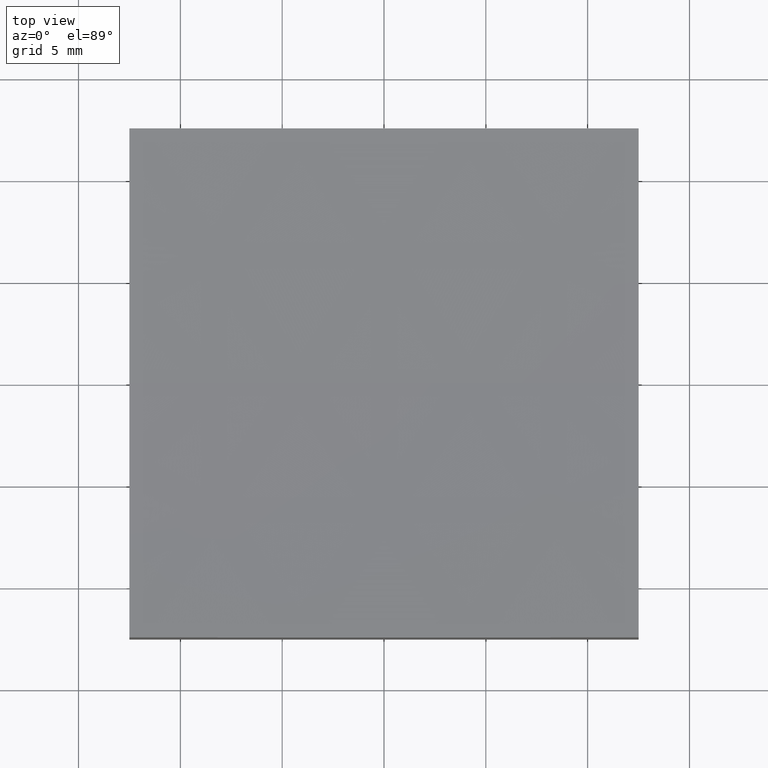
[diagram: clean part render]
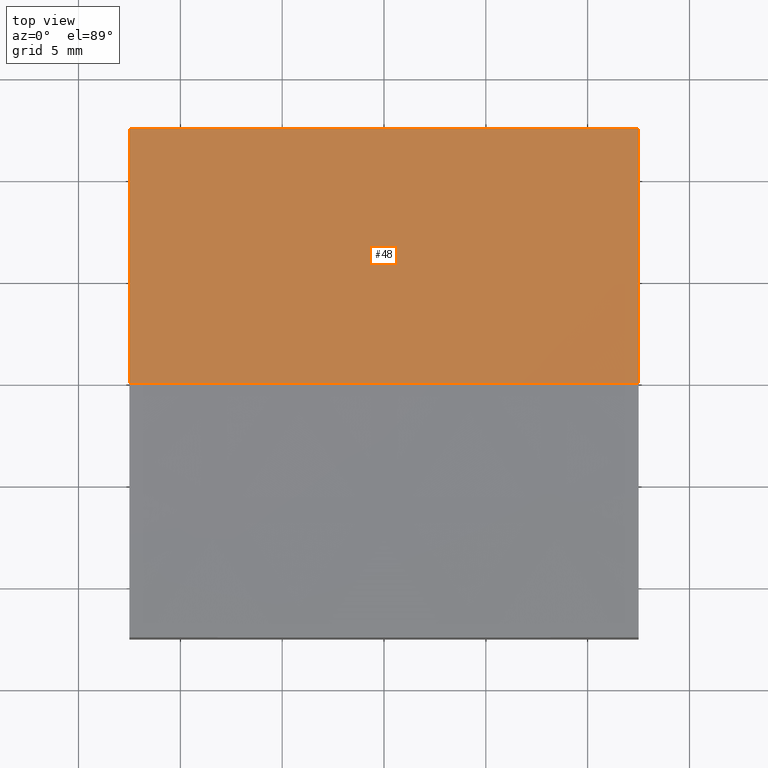
[diagram: same view with one face highlighted and labeled with its STEP entity id]
A machine part, top view. The second image highlights one B-rep face of the part: STEP entity #48.
In plain terms, the highlighted spherical surface has radius 500 mm.
Its self-contained STEP definition (entity closure, byte-faithful):
#1 = VERTEX_POINT ( 'NONE', #166 ) ;
#11 = DIRECTION ( 'NONE',  ( -1.388212665044284229E-16, 1.000000000000000000, 0.0000000000000000000 ) ) ;
#13 = AXIS2_PLACEMENT_3D ( 'NONE', #205, #169, #11 ) ;
#14 = EDGE_CURVE ( 'NONE', #85, #1, #110, .T. ) ;
#18 = CARTESIAN_POINT ( 'NONE',  ( -12.50000000000000000, 12.50000000000000000, 6.312597717332835145 ) ) ;
#25 = DIRECTION ( 'NONE',  ( 0.0000000000000000000, 1.000000000000000000, 0.0000000000000000000 ) ) ;
#35 = VERTEX_POINT ( 'NONE', #157 ) ;
#45 = CARTESIAN_POINT ( 'NONE',  ( 6.196712803685608594E-14, 0.0000000000000000000, 506.0000000000000000 ) ) ;
#47 = DIRECTION ( 'NONE',  ( 0.0000000000000000000, 0.0000000000000000000, -1.000000000000000000 ) ) ;
#48 = ADVANCED_FACE ( 'NONE', ( #78 ), #231, .F. ) ;
#51 = CIRCLE ( 'NONE', #122, 499.8437255783051683 ) ;
#63 = EDGE_CURVE ( 'NONE', #1, #99, #51, .T. ) ;
#66 = CARTESIAN_POINT ( 'NONE',  ( -12.49999999999999822, -1.734723475976815575E-15, 506.0000000000000000 ) ) ;
#68 = AXIS2_PLACEMENT_3D ( 'NONE', #152, #245, #90 ) ;
#78 = FACE_OUTER_BOUND ( 'NONE', #198, .T. ) ;
#80 = AXIS2_PLACEMENT_3D ( 'NONE', #45, #88, #47 ) ;
#82 = ORIENTED_EDGE ( 'NONE', *, *, #14, .F. ) ;
#84 = DIRECTION ( 'NONE',  ( 1.000000000000000000, 1.387778780781445676E-16, -0.0000000000000000000 ) ) ;
#85 = VERTEX_POINT ( 'NONE', #104 ) ;
#88 = DIRECTION ( 'NONE',  ( 0.0000000000000000000, -1.000000000000000000, -0.0000000000000000000 ) ) ;
#89 = CIRCLE ( 'NONE', #13, 499.8437255783051683 ) ;
#90 = DIRECTION ( 'NONE',  ( 0.0000000000000000000, 0.0000000000000000000, 1.000000000000000000 ) ) ;
#98 = CARTESIAN_POINT ( 'NONE',  ( 6.196712803685608594E-14, 0.0000000000000000000, 506.0000000000000000 ) ) ;
#99 = VERTEX_POINT ( 'NONE', #18 ) ;
#103 = ORIENTED_EDGE ( 'NONE', *, *, #177, .T. ) ;
#104 = CARTESIAN_POINT ( 'NONE',  ( 3.271569539582041015E-14, 0.0000000000000000000, 6.000000000000005329 ) ) ;
#110 = CIRCLE ( 'NONE', #233, 500.0000000000000000 ) ;
#114 = VERTEX_POINT ( 'NONE', #134 ) ;
#119 = DIRECTION ( 'NONE',  ( 1.224646799147353207E-16, 1.000000000000000000, -1.466333358417303786E-32 ) ) ;
#122 = AXIS2_PLACEMENT_3D ( 'NONE', #66, #84, #147 ) ;
#127 = DIRECTION ( 'NONE',  ( 1.000000000000000000, 0.0000000000000000000, -2.220446049250313081E-16 ) ) ;
#134 = CARTESIAN_POINT ( 'NONE',  ( 12.50000000000000178, 9.629649721936179265E-32, 6.156274421694862831 ) ) ;
#147 = DIRECTION ( 'NONE',  ( -1.388212665044284229E-16, 1.000000000000000000, 0.0000000000000000000 ) ) ;
#152 = CARTESIAN_POINT ( 'NONE',  ( 6.196712803685608594E-14, 12.50000000000000000, 506.0000000000000000 ) ) ;
#157 = CARTESIAN_POINT ( 'NONE',  ( 12.50000000000000000, 12.50000000000000000, 6.312597717332835145 ) ) ;
#163 = ORIENTED_EDGE ( 'NONE', *, *, #63, .F. ) ;
#166 = CARTESIAN_POINT ( 'NONE',  ( -12.49999999999999822, 1.530808498934191127E-15, 6.156274421694862831 ) ) ;
#167 = CARTESIAN_POINT ( 'NONE',  ( 6.196712803685608594E-14, 0.0000000000000000000, 506.0000000000000000 ) ) ;
#168 = EDGE_CURVE ( 'NONE', #114, #35, #89, .T. ) ;
#169 = DIRECTION ( 'NONE',  ( 1.000000000000000000, 1.387778780781445676E-16, -0.0000000000000000000 ) ) ;
#172 = CIRCLE ( 'NONE', #80, 500.0000000000000000 ) ;
#177 = EDGE_CURVE ( 'NONE', #35, #99, #193, .T. ) ;
#182 = ORIENTED_EDGE ( 'NONE', *, *, #218, .T. ) ;
#193 = CIRCLE ( 'NONE', #68, 499.8437255783050546 ) ;
#198 = EDGE_LOOP ( 'NONE', ( #82, #182, #230, #103, #163 ) ) ;
#205 = CARTESIAN_POINT ( 'NONE',  ( 12.50000000000000178, 1.734723475976798811E-15, 506.0000000000000000 ) ) ;
#213 = DIRECTION ( 'NONE',  ( -1.000000000000000000, 1.224646799147353207E-16, 0.0000000000000000000 ) ) ;
#218 = EDGE_CURVE ( 'NONE', #85, #114, #172, .T. ) ;
#230 = ORIENTED_EDGE ( 'NONE', *, *, #168, .T. ) ;
#231 = SPHERICAL_SURFACE ( 'NONE', #247, 500.0000000000000000 ) ;
#233 = AXIS2_PLACEMENT_3D ( 'NONE', #98, #119, #213 ) ;
#245 = DIRECTION ( 'NONE',  ( 0.0000000000000000000, 1.000000000000000000, 0.0000000000000000000 ) ) ;
#247 = AXIS2_PLACEMENT_3D ( 'NONE', #167, #25, #127 ) ;